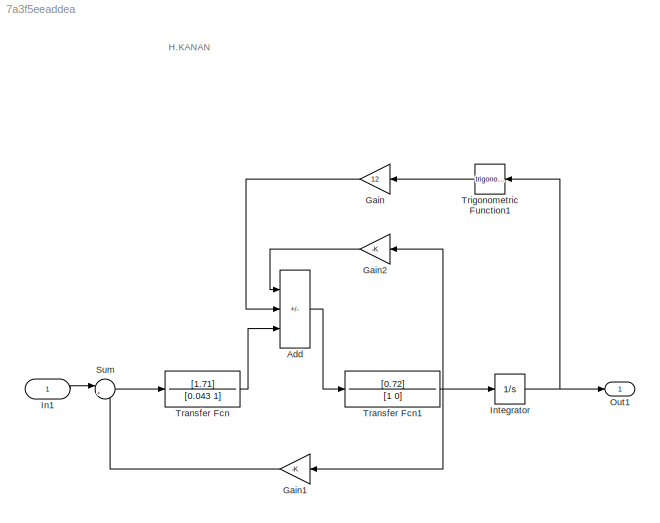
MODEL slx_7a3f5eeaddea
KIND model
CONFIG AbsTol = auto
CONFIG EnableMultiTasking = off
CONFIG FixedStep = auto
CONFIG MaxStep = auto
CONFIG MinStep = auto
CONFIG RelTol = 1e-3
CONFIG SampleTimeConstraint = Unconstrained
CONFIG SolverName = VariableStepAuto
CONFIG StartTime = 0.0
CONFIG StopTime = 0.5
WORKSPACE source: mxarray member
WORKSPACE C2 = 23
BLOCK [Sum] Add
  IconShape = rectangular
  Inputs = --+
BLOCK [Gain] Gain
  Gain = 12
  NameLocation = top
BLOCK [Gain] Gain1
  Gain = -K
  NameLocation = top
BLOCK [Gain] Gain2
  Gain = -K
  NameLocation = top
BLOCK [Inport] In1
BLOCK [Integrator] Integrator
BLOCK [Outport] Out1
BLOCK [Sum] Sum
  Inputs = |+-
BLOCK [TransferFcn] Transfer Fcn
  Denominator = [0.043 1]
  Numerator = [1.71]
BLOCK [TransferFcn] Transfer Fcn1
  Denominator = [1 0]
  Numerator = [0.72]
BLOCK [Trigonometry] Trigonometric Function1
  NameLocation = top
ANNOTATION (root): H.KANAN
LINE Add:1 -> Transfer Fcn1:1
LINE Gain1:1 -> Sum:2
LINE Gain2:1 -> Add:1
LINE Gain:1 -> Add:2
LINE In1:1 -> Sum:1
NET Integrator:1 -> Out1:1, Trigonometric Function1:1
LINE Sum:1 -> Transfer Fcn:1
NET Transfer Fcn1:1 -> Gain1:1, Gain2:1, Integrator:1
LINE Transfer Fcn:1 -> Add:3
LINE Trigonometric Function1:1 -> Gain:1
note: NET lines group one-source signal fan-out (src -> all destinations, sorted); 1:1 wires keep LINE
